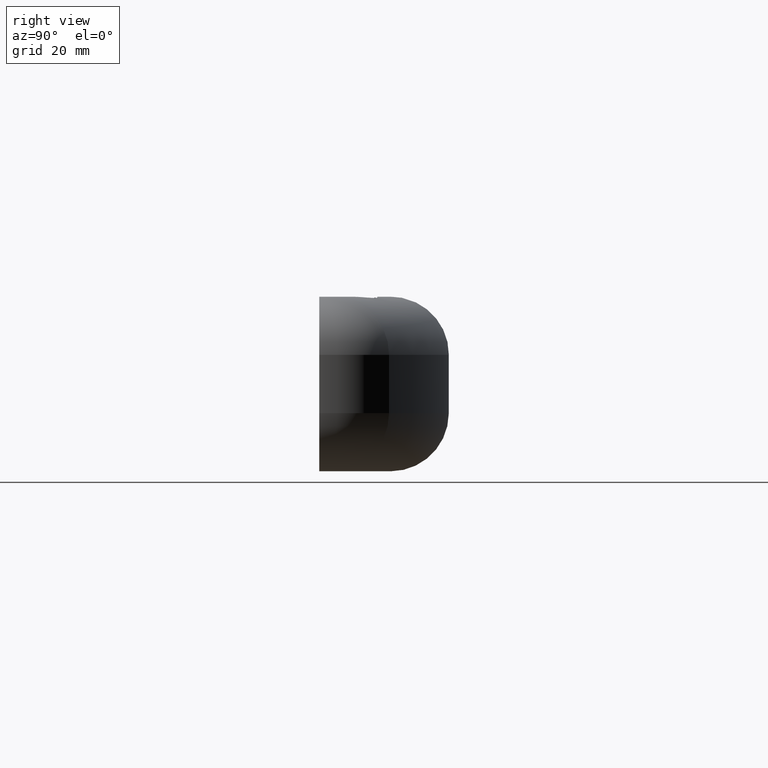
[diagram: clean part render]
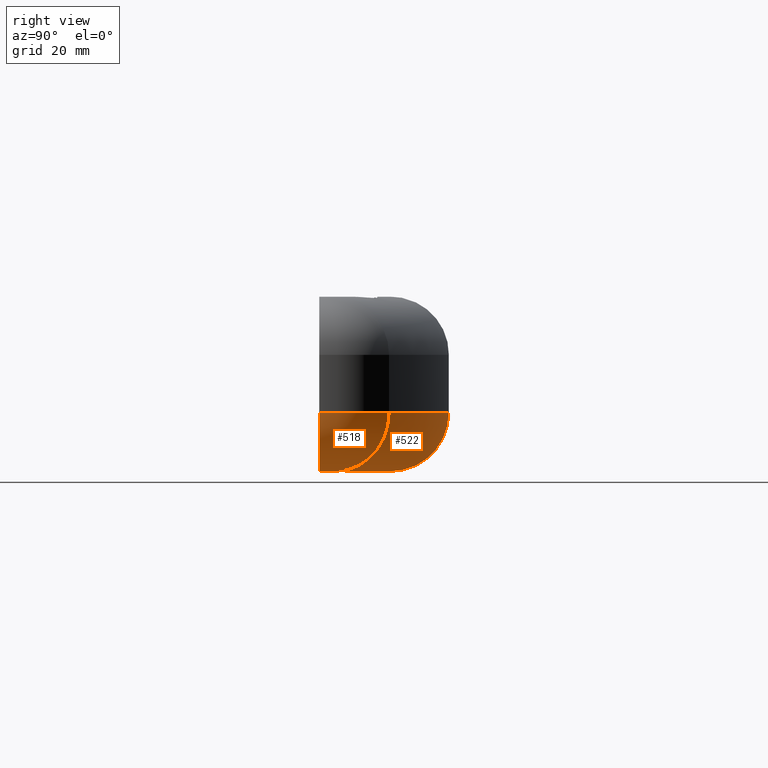
[diagram: same view with one multi-face feature highlighted, each face labeled with its STEP entity id]
A machine part, right view. The highlighted faces form ONE feature: a constant-radius fillet chain: 2 tangent blend faces with common blend radius 10 mm. The faces share edges in the B-rep.
Their STEP definitions:
[1] entity #522 (Torus):
#57 = FACE_OUTER_BOUND ( 'NONE', #618, .T. ) ;
#58 = TOROIDAL_SURFACE ( 'NONE', #142, 125.2000000000006700, 10.00000000000000000 ) ;
#106 = AXIS2_PLACEMENT_3D ( 'NONE', #398, #399, #400 ) ;
#115 = AXIS2_PLACEMENT_3D ( 'NONE', #465, #466, #467 ) ;
#117 = AXIS2_PLACEMENT_3D ( 'NONE', #459, #460, #461 ) ;
#118 = AXIS2_PLACEMENT_3D ( 'NONE', #456, #457, #458 ) ;
#142 = AXIS2_PLACEMENT_3D ( 'NONE', #291, #292, #293 ) ;
#161 = EDGE_CURVE ( 'NONE', #354, #380, #654, .T. ) ;
#162 = EDGE_CURVE ( 'NONE', #380, #375, #655, .T. ) ;
#164 = EDGE_CURVE ( 'NONE', #349, #375, #658, .T. ) ;
#189 = ORIENTED_EDGE ( 'NONE', *, *, #770, .F. ) ;
#291 = CARTESIAN_POINT ( 'NONE',  ( -60.00000000000000000, -112.8000000000007600, 10.00000000000000200 ) ) ;
#292 = DIRECTION ( 'NONE',  ( -0.0000000000000000000, -0.0000000000000000000, -1.000000000000000000 ) ) ;
#293 = DIRECTION ( 'NONE',  ( -1.000000000000000000, 0.0000000000000000000, 0.0000000000000000000 ) ) ;
#349 = VERTEX_POINT ( 'NONE', #475 ) ;
#354 = VERTEX_POINT ( 'NONE', #480 ) ;
#375 = VERTEX_POINT ( 'NONE', #504 ) ;
#380 = VERTEX_POINT ( 'NONE', #507 ) ;
#398 = CARTESIAN_POINT ( 'NONE',  ( -60.00000000000000000, -112.8000000000007600, 0.0000000000000000000 ) ) ;
#399 = DIRECTION ( 'NONE',  ( -0.0000000000000000000, -0.0000000000000000000, -1.000000000000000000 ) ) ;
#400 = DIRECTION ( 'NONE',  ( -1.000000000000000000, 0.0000000000000000000, 0.0000000000000000000 ) ) ;
#456 = CARTESIAN_POINT ( 'NONE',  ( -11.84615384615385600, 2.769230769230760700, 10.00000000000000000 ) ) ;
#457 = DIRECTION ( 'NONE',  ( 0.9230769230769228000, -0.3846153846153858000, 0.0000000000000000000 ) ) ;
#458 = DIRECTION ( 'NONE',  ( 0.3846153846153857500, 0.9230769230769226800, 0.0000000000000000000 ) ) ;
#459 = CARTESIAN_POINT ( 'NONE',  ( -60.00000000000000000, -112.8000000000007600, 10.00000000000000200 ) ) ;
#460 = DIRECTION ( 'NONE',  ( 0.0000000000000000000, 0.0000000000000000000, 1.000000000000000000 ) ) ;
#461 = DIRECTION ( 'NONE',  ( -1.000000000000000000, 3.592622583383902400E-015, 0.0000000000000000000 ) ) ;
#465 = CARTESIAN_POINT ( 'NONE',  ( -108.1538461538461500, 2.769230769230757200, 10.00000000000000000 ) ) ;
#466 = DIRECTION ( 'NONE',  ( 0.9230769230769232400, 0.3846153846153847500, 0.0000000000000000000 ) ) ;
#467 = DIRECTION ( 'NONE',  ( -0.3846153846153844700, 0.9230769230769230200, 0.0000000000000000000 ) ) ;
#475 = CARTESIAN_POINT ( 'NONE',  ( -108.1538461538461500, 2.769230769230757200, 0.0000000000000000000 ) ) ;
#480 = CARTESIAN_POINT ( 'NONE',  ( -11.84615384615385600, 2.769230769230760700, 0.0000000000000000000 ) ) ;
#504 = CARTESIAN_POINT ( 'NONE',  ( -111.9999999999999900, 11.99999999999998800, 10.00000000000000200 ) ) ;
#507 = CARTESIAN_POINT ( 'NONE',  ( -8.000000000000000000, 11.99999999999998200, 10.00000000000000200 ) ) ;
#522 = ADVANCED_FACE ( 'NONE', ( #57 ), #58, .T. ) ;
#579 = ORIENTED_EDGE ( 'NONE', *, *, #164, .T. ) ;
#580 = ORIENTED_EDGE ( 'NONE', *, *, #162, .F. ) ;
#581 = ORIENTED_EDGE ( 'NONE', *, *, #161, .F. ) ;
#618 = EDGE_LOOP ( 'NONE', ( #579, #580, #581, #189 ) ) ;
#654 = CIRCLE ( 'NONE', #118, 10.00000000000000400 ) ;
#655 = CIRCLE ( 'NONE', #117, 135.2000000000006700 ) ;
#658 = CIRCLE ( 'NONE', #115, 10.00000000000000400 ) ;
#723 = CIRCLE ( 'NONE', #106, 125.2000000000006700 ) ;
#770 = EDGE_CURVE ( 'NONE', #349, #354, #723, .T. ) ;
[2] entity #518 (Torus):
#33 = CIRCLE ( 'NONE', #143, 13.00000000000001400 ) ;
#39 = CIRCLE ( 'NONE', #122, 3.000000000000016400 ) ;
#49 = FACE_OUTER_BOUND ( 'NONE', #608, .T. ) ;
#50 = TOROIDAL_SURFACE ( 'NONE', #90, 3.000000000000014700, 10.00000000000000000 ) ;
#80 = AXIS2_PLACEMENT_3D ( 'NONE', #253, #254, #255 ) ;
#90 = AXIS2_PLACEMENT_3D ( 'NONE', #279, #280, #281 ) ;
#118 = AXIS2_PLACEMENT_3D ( 'NONE', #456, #457, #458 ) ;
#122 = AXIS2_PLACEMENT_3D ( 'NONE', #470, #471, #472 ) ;
#143 = AXIS2_PLACEMENT_3D ( 'NONE', #219, #220, #221 ) ;
#161 = EDGE_CURVE ( 'NONE', #354, #380, #654, .T. ) ;
#166 = EDGE_CURVE ( 'NONE', #354, #367, #39, .T. ) ;
#188 = ORIENTED_EDGE ( 'NONE', *, *, #161, .T. ) ;
#190 = ORIENTED_EDGE ( 'NONE', *, *, #746, .F. ) ;
#193 = ORIENTED_EDGE ( 'NONE', *, *, #758, .F. ) ;
#219 = CARTESIAN_POINT ( 'NONE',  ( -13.00000000000001800, -2.081668171172168500E-014, 10.00000000000000200 ) ) ;
#220 = DIRECTION ( 'NONE',  ( 0.0000000000000000000, 0.0000000000000000000, 1.000000000000000000 ) ) ;
#221 = DIRECTION ( 'NONE',  ( -1.000000000000000000, 0.0000000000000000000, 0.0000000000000000000 ) ) ;
#253 = CARTESIAN_POINT ( 'NONE',  ( -10.00000000000000400, -2.044928767197747700E-014, 10.00000000000000200 ) ) ;
#254 = DIRECTION ( 'NONE',  ( 1.224646799147353500E-016, -1.000000000000000000, -0.0000000000000000000 ) ) ;
#255 = DIRECTION ( 'NONE',  ( -1.000000000000000000, -1.224646799147353700E-016, 0.0000000000000000000 ) ) ;
#279 = CARTESIAN_POINT ( 'NONE',  ( -13.00000000000001800, -2.081668171172168500E-014, 10.00000000000000200 ) ) ;
#280 = DIRECTION ( 'NONE',  ( -0.0000000000000000000, -0.0000000000000000000, -1.000000000000000000 ) ) ;
#281 = DIRECTION ( 'NONE',  ( -1.000000000000000000, 0.0000000000000000000, 0.0000000000000000000 ) ) ;
#354 = VERTEX_POINT ( 'NONE', #480 ) ;
#367 = VERTEX_POINT ( 'NONE', #493 ) ;
#372 = VERTEX_POINT ( 'NONE', #502 ) ;
#380 = VERTEX_POINT ( 'NONE', #507 ) ;
#456 = CARTESIAN_POINT ( 'NONE',  ( -11.84615384615385600, 2.769230769230760700, 10.00000000000000000 ) ) ;
#457 = DIRECTION ( 'NONE',  ( 0.9230769230769228000, -0.3846153846153858000, 0.0000000000000000000 ) ) ;
#458 = DIRECTION ( 'NONE',  ( 0.3846153846153857500, 0.9230769230769226800, 0.0000000000000000000 ) ) ;
#470 = CARTESIAN_POINT ( 'NONE',  ( -13.00000000000001800, -2.081668171172168500E-014, 0.0000000000000000000 ) ) ;
#471 = DIRECTION ( 'NONE',  ( -0.0000000000000000000, -0.0000000000000000000, -1.000000000000000000 ) ) ;
#472 = DIRECTION ( 'NONE',  ( -1.000000000000000000, 0.0000000000000000000, 0.0000000000000000000 ) ) ;
#480 = CARTESIAN_POINT ( 'NONE',  ( -11.84615384615385600, 2.769230769230760700, 0.0000000000000000000 ) ) ;
#493 = CARTESIAN_POINT ( 'NONE',  ( -10.00000000000000400, -1.224646799147354000E-015, 0.0000000000000000000 ) ) ;
#502 = CARTESIAN_POINT ( 'NONE',  ( 0.0000000000000000000, 0.0000000000000000000, 10.00000000000000200 ) ) ;
#507 = CARTESIAN_POINT ( 'NONE',  ( -8.000000000000000000, 11.99999999999998200, 10.00000000000000200 ) ) ;
#518 = ADVANCED_FACE ( 'NONE', ( #49 ), #50, .T. ) ;
#608 = EDGE_LOOP ( 'NONE', ( #193, #768, #188, #190 ) ) ;
#654 = CIRCLE ( 'NONE', #118, 10.00000000000000400 ) ;
#714 = CIRCLE ( 'NONE', #80, 10.00000000000000000 ) ;
#746 = EDGE_CURVE ( 'NONE', #372, #380, #33, .T. ) ;
#758 = EDGE_CURVE ( 'NONE', #367, #372, #714, .T. ) ;
#768 = ORIENTED_EDGE ( 'NONE', *, *, #166, .F. ) ;